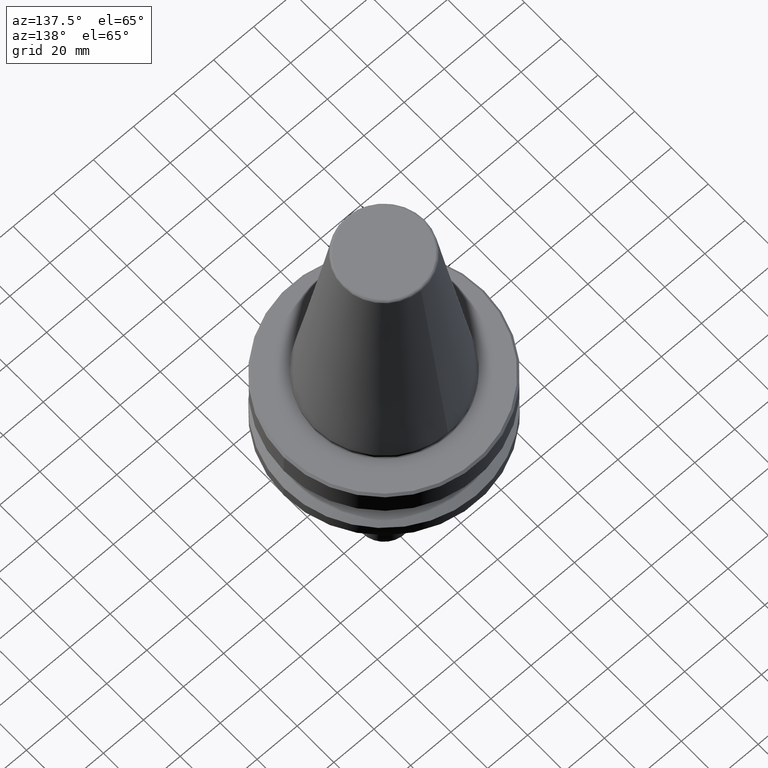
[diagram: clean part render]
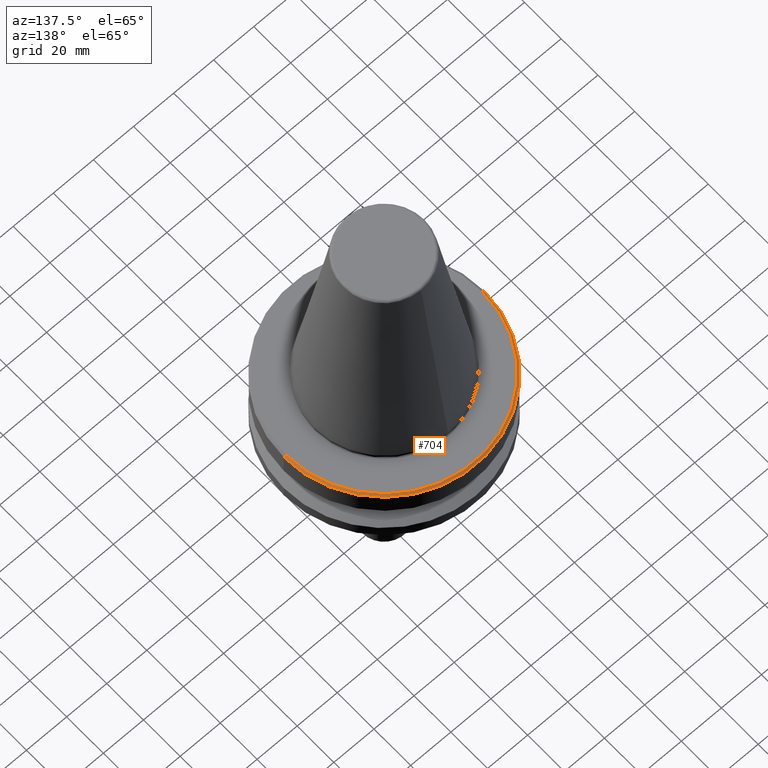
[diagram: same view with one face highlighted and labeled with its STEP entity id]
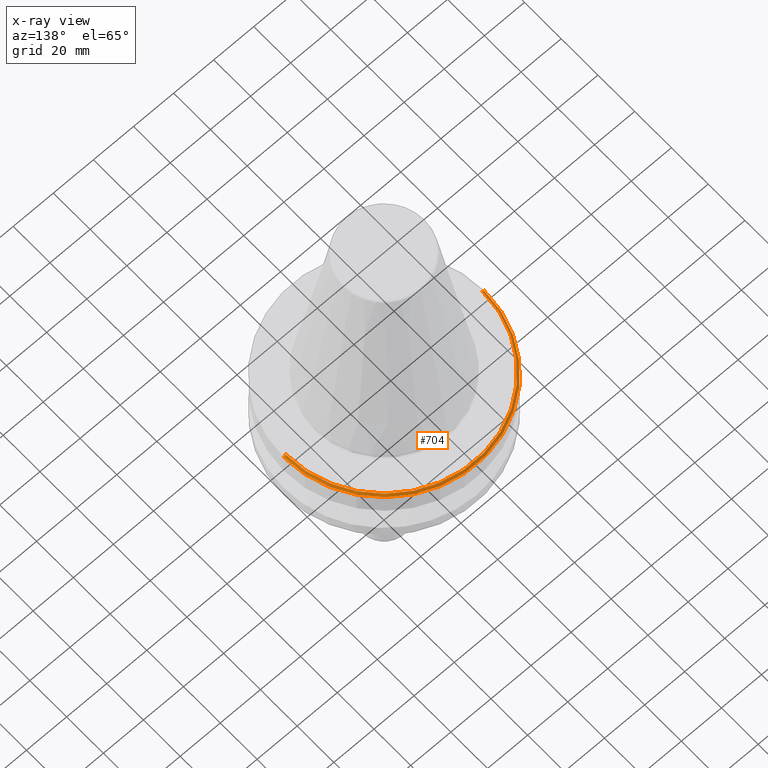
[diagram: x-ray of the same camera — body ghosted, the highlighted face saturated]
A machine part, auxiliary view. The second image highlights one B-rep face of the part: STEP entity #704.
The next image is the same camera in x-ray: the body ghosted, the highlighted face saturated — about 0% of this face is hidden behind the body in this view.
In plain terms, the highlighted conical surface has half-angle 45 deg.
Its self-contained STEP definition (entity closure, byte-faithful):
#452 = CIRCLE ( 'NONE', #1051, 50.00000000000000000 ) ;
#484 = VERTEX_POINT ( 'NONE', #1562 ) ;
#650 = DIRECTION ( 'NONE',  ( -1.000000000000000000, 0.0000000000000000000, 0.0000000000000000000 ) ) ;
#655 = DIRECTION ( 'NONE',  ( 0.0000000000000000000, 0.0000000000000000000, -1.000000000000000000 ) ) ;
#657 = CARTESIAN_POINT ( 'NONE',  ( 0.0000000000000000000, 0.0000000000000000000, -2.999999999999988900 ) ) ;
#690 = VERTEX_POINT ( 'NONE', #1491 ) ;
#704 = ADVANCED_FACE ( 'NONE', ( #2319 ), #1168, .T. ) ;
#717 = DIRECTION ( 'NONE',  ( -1.000000000000000000, 0.0000000000000000000, -3.469446951953614200E-017 ) ) ;
#722 = DIRECTION ( 'NONE',  ( -0.0000000000000000000, -0.0000000000000000000, 1.000000000000000000 ) ) ;
#725 = CARTESIAN_POINT ( 'NONE',  ( 0.0000000000000000000, 0.0000000000000000000, -3.999999999999989800 ) ) ;
#728 = EDGE_CURVE ( 'NONE', #484, #2142, #1743, .T. ) ;
#730 = CARTESIAN_POINT ( 'NONE',  ( 50.00000000000000700, 6.123233995736766900E-015, -3.999999999999998200 ) ) ;
#755 = DIRECTION ( 'NONE',  ( 0.7071067811865469100, 8.659560562354925500E-017, -0.7071067811865482400 ) ) ;
#1000 = EDGE_CURVE ( 'NONE', #1683, #2142, #452, .T. ) ;
#1004 = EDGE_CURVE ( 'NONE', #690, #1683, #2548, .T. ) ;
#1019 = ORIENTED_EDGE ( 'NONE', *, *, #1000, .T. ) ;
#1051 = AXIS2_PLACEMENT_3D ( 'NONE', #725, #722, #717 ) ;
#1063 = EDGE_CURVE ( 'NONE', #484, #690, #2071, .T. ) ;
#1124 = AXIS2_PLACEMENT_3D ( 'NONE', #657, #655, #650 ) ;
#1168 = CONICAL_SURFACE ( 'NONE', #2217, 50.00000000000000700, 0.7853981633974473900 ) ;
#1323 = CARTESIAN_POINT ( 'NONE',  ( -50.00000000000000000, 6.123233995736766100E-015, -3.999999999999989800 ) ) ;
#1388 = DIRECTION ( 'NONE',  ( -0.7071067811865469100, 0.0000000000000000000, -0.7071067811865482400 ) ) ;
#1399 = CARTESIAN_POINT ( 'NONE',  ( -50.00000000000000700, 0.0000000000000000000, -3.999999999999998200 ) ) ;
#1435 = CARTESIAN_POINT ( 'NONE',  ( 0.0000000000000000000, 0.0000000000000000000, -3.999999999999998200 ) ) ;
#1438 = DIRECTION ( 'NONE',  ( -1.000000000000000000, 0.0000000000000000000, 0.0000000000000000000 ) ) ;
#1460 = DIRECTION ( 'NONE',  ( 0.0000000000000000000, 0.0000000000000000000, -1.000000000000000000 ) ) ;
#1487 = ORIENTED_EDGE ( 'NONE', *, *, #728, .F. ) ;
#1491 = CARTESIAN_POINT ( 'NONE',  ( 49.00000000000000000, 6.062001655779398500E-015, -2.999999999999988900 ) ) ;
#1520 = VECTOR ( 'NONE', #755, 1000.000000000000000 ) ;
#1562 = CARTESIAN_POINT ( 'NONE',  ( -49.00000000000000000, 0.0000000000000000000, -2.999999999999988900 ) ) ;
#1683 = VERTEX_POINT ( 'NONE', #2698 ) ;
#1743 = LINE ( 'NONE', #1399, #2619 ) ;
#1842 = ORIENTED_EDGE ( 'NONE', *, *, #1004, .T. ) ;
#2071 = CIRCLE ( 'NONE', #1124, 49.00000000000000000 ) ;
#2142 = VERTEX_POINT ( 'NONE', #1323 ) ;
#2217 = AXIS2_PLACEMENT_3D ( 'NONE', #1435, #1460, #1438 ) ;
#2319 = FACE_OUTER_BOUND ( 'NONE', #2329, .T. ) ;
#2329 = EDGE_LOOP ( 'NONE', ( #2350, #1842, #1019, #1487 ) ) ;
#2350 = ORIENTED_EDGE ( 'NONE', *, *, #1063, .T. ) ;
#2548 = LINE ( 'NONE', #730, #1520 ) ;
#2619 = VECTOR ( 'NONE', #1388, 1000.000000000000000 ) ;
#2698 = CARTESIAN_POINT ( 'NONE',  ( 50.00000000000000000, 0.0000000000000000000, -3.999999999999989800 ) ) ;